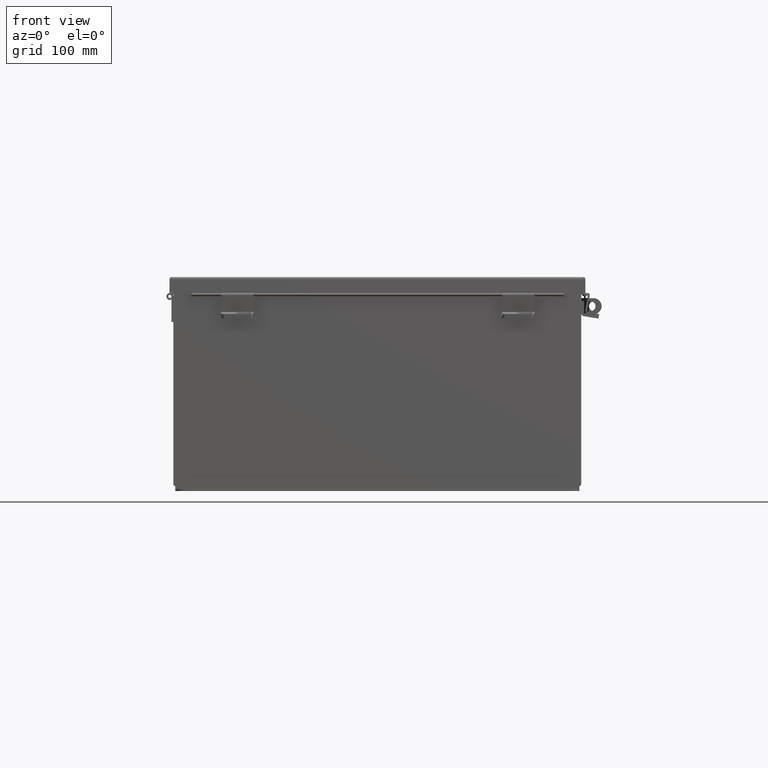
[diagram: clean part render]
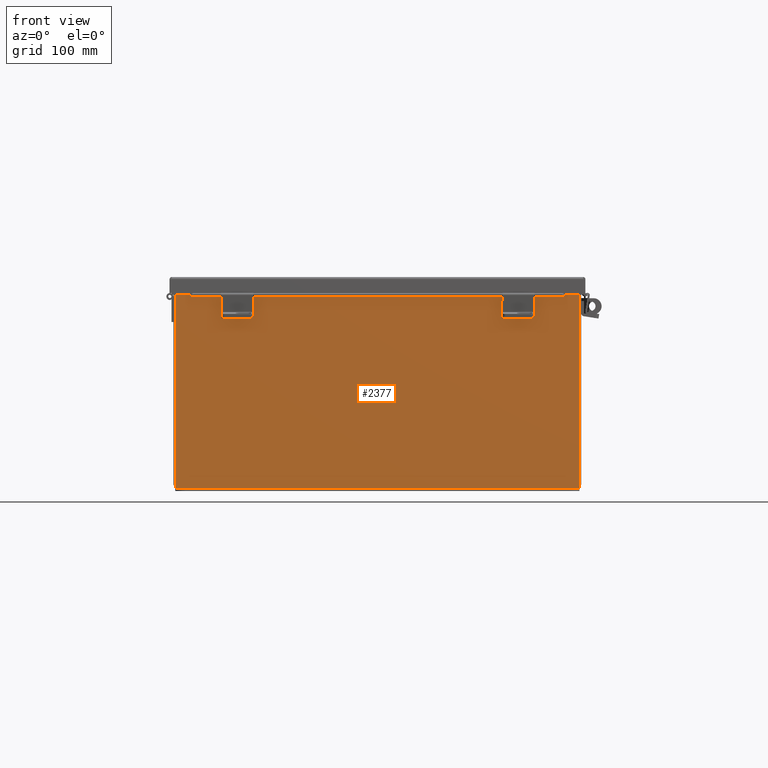
[diagram: same view with one face highlighted and labeled with its STEP entity id]
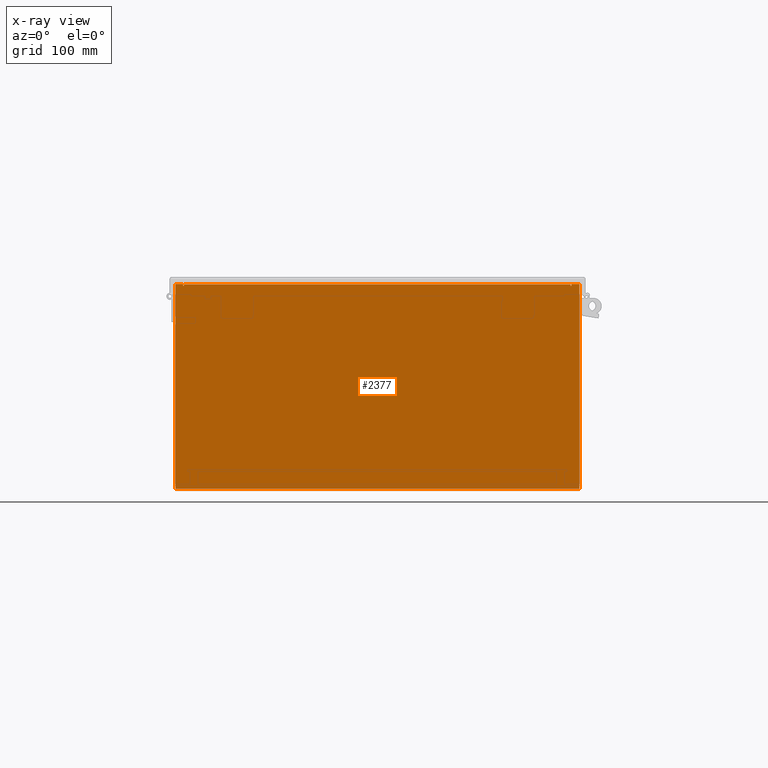
[diagram: x-ray of the same camera — body ghosted, the highlighted face saturated]
A machine part, front view. The second image highlights one B-rep face of the part: STEP entity #2377.
The next image is the same camera in x-ray: the body ghosted, the highlighted face saturated — about 0% of this face is hidden behind the body in this view.
In plain terms, the highlighted planar face has unit normal (-0, 1, -0).
Its self-contained STEP definition (entity closure, byte-faithful):
#1123 = ORIENTED_EDGE ( 'NONE', *, *, #18705, .F. ) ;
#1651 = VECTOR ( 'NONE', #7630, 39.37007874015748100 ) ;
#1721 = CARTESIAN_POINT ( 'NONE',  ( -7.582299999999991200, 0.0000000000000000000, 0.0000000000000000000 ) ) ;
#1756 = CARTESIAN_POINT ( 'NONE',  ( 7.582300000000008000, 0.0000000000000000000, 3.912299999999998800 ) ) ;
#1758 = EDGE_CURVE ( 'NONE', #12226, #7974, #14048, .T. ) ;
#1808 = EDGE_CURVE ( 'NONE', #20634, #17099, #8913, .T. ) ;
#2187 = LINE ( 'NONE', #5903, #1651 ) ;
#2377 = ADVANCED_FACE ( 'NONE', ( #16458 ), #14471, .F. ) ;
#2391 = CARTESIAN_POINT ( 'NONE',  ( 7.600975000000008000, 0.0000000000000000000, 3.874949999999998300 ) ) ;
#2631 = VERTEX_POINT ( 'NONE', #12726 ) ;
#2712 = ORIENTED_EDGE ( 'NONE', *, *, #16658, .T. ) ;
#2821 = CARTESIAN_POINT ( 'NONE',  ( -7.925299999999990200, -1.748382715945128500E-014, 3.925299999999999600 ) ) ;
#2836 = ORIENTED_EDGE ( 'NONE', *, *, #18656, .T. ) ;
#2870 = CIRCLE ( 'NONE', #10844, 0.01867500000000003900 ) ;
#2980 = ORIENTED_EDGE ( 'NONE', *, *, #14484, .F. ) ;
#4085 = DIRECTION ( 'NONE',  ( 0.0000000000000000000, 0.0000000000000000000, -1.000000000000000000 ) ) ;
#4125 = DIRECTION ( 'NONE',  ( 0.0000000000000000000, 0.0000000000000000000, -1.000000000000000000 ) ) ;
#4134 = LINE ( 'NONE', #15691, #8215 ) ;
#4221 = VECTOR ( 'NONE', #12978, 39.37007874015748100 ) ;
#4694 = CARTESIAN_POINT ( 'NONE',  ( -7.925299999999990200, -1.748382715945128500E-014, 3.925299999999999600 ) ) ;
#4701 = CARTESIAN_POINT ( 'NONE',  ( 7.619650000000007100, 0.0000000000000000000, 3.874949999999998300 ) ) ;
#4715 = CARTESIAN_POINT ( 'NONE',  ( 0.0000000000000000000, 0.0000000000000000000, 0.0000000000000000000 ) ) ;
#5088 = DIRECTION ( 'NONE',  ( 0.0000000000000000000, 0.0000000000000000000, -1.000000000000000000 ) ) ;
#5534 = VECTOR ( 'NONE', #11283, 39.37007874015748100 ) ;
#5903 = CARTESIAN_POINT ( 'NONE',  ( 7.925300000000009800, 0.0000000000000000000, 3.925299999999999600 ) ) ;
#6359 = EDGE_CURVE ( 'NONE', #7974, #21381, #7149, .T. ) ;
#6467 = DIRECTION ( 'NONE',  ( 1.000000000000000000, 4.910036603141682400E-031, 0.0000000000000000000 ) ) ;
#6549 = DIRECTION ( 'NONE',  ( 1.000000000000000000, 4.910036603141682400E-031, -0.0000000000000000000 ) ) ;
#7092 = DIRECTION ( 'NONE',  ( 0.0000000000000000000, 0.0000000000000000000, 1.000000000000000000 ) ) ;
#7149 = CIRCLE ( 'NONE', #18149, 0.01867500000000003900 ) ;
#7599 = AXIS2_PLACEMENT_3D ( 'NONE', #4715, #10393, #4085 ) ;
#7630 = DIRECTION ( 'NONE',  ( -1.391918066728283300E-016, 0.0000000000000000000, -1.000000000000000000 ) ) ;
#7974 = VERTEX_POINT ( 'NONE', #20567 ) ;
#8215 = VECTOR ( 'NONE', #7092, 39.37007874015748100 ) ;
#8405 = VERTEX_POINT ( 'NONE', #18509 ) ;
#8913 = LINE ( 'NONE', #2821, #18655 ) ;
#9039 = VECTOR ( 'NONE', #12566, 39.37007874015748100 ) ;
#10393 = DIRECTION ( 'NONE',  ( -4.910036603141682400E-031, -1.000000000000000000, -0.0000000000000000000 ) ) ;
#10844 = AXIS2_PLACEMENT_3D ( 'NONE', #2391, #14479, #4125 ) ;
#10912 = CARTESIAN_POINT ( 'NONE',  ( -7.925299999999990200, -1.748382715945128500E-014, 3.925299999999999600 ) ) ;
#11283 = DIRECTION ( 'NONE',  ( -4.340572780399910900E-014, 0.0000000000000000000, -1.000000000000000000 ) ) ;
#11627 = EDGE_CURVE ( 'NONE', #12226, #13730, #14252, .T. ) ;
#11666 = ORIENTED_EDGE ( 'NONE', *, *, #14078, .F. ) ;
#12226 = VERTEX_POINT ( 'NONE', #16055 ) ;
#12566 = DIRECTION ( 'NONE',  ( 1.000000000000000000, 4.910036603141682400E-031, 0.0000000000000000000 ) ) ;
#12726 = CARTESIAN_POINT ( 'NONE',  ( 7.925300000000009800, 0.0000000000000000000, 3.925299999999999600 ) ) ;
#12978 = DIRECTION ( 'NONE',  ( 0.0000000000000000000, 0.0000000000000000000, 1.000000000000000000 ) ) ;
#12981 = DIRECTION ( 'NONE',  ( 1.000000000000000000, 8.208677865577687000E-017, -0.0000000000000000000 ) ) ;
#13055 = EDGE_CURVE ( 'NONE', #16378, #18317, #19894, .T. ) ;
#13432 = LINE ( 'NONE', #13458, #4221 ) ;
#13458 = CARTESIAN_POINT ( 'NONE',  ( -7.619649999999991200, 0.0000000000000000000, 0.0000000000000000000 ) ) ;
#13651 = CARTESIAN_POINT ( 'NONE',  ( 7.619650000000010700, 0.0000000000000000000, 3.925299999999999600 ) ) ;
#13730 = VERTEX_POINT ( 'NONE', #1756 ) ;
#14048 = LINE ( 'NONE', #1721, #14577 ) ;
#14078 = EDGE_CURVE ( 'NONE', #21381, #17099, #13432, .T. ) ;
#14143 = EDGE_LOOP ( 'NONE', ( #11666, #16664, #21023, #17689, #14758, #2980, #19377, #2712, #2836, #1123, #14351, #17469 ) ) ;
#14252 = LINE ( 'NONE', #20324, #17775 ) ;
#14333 = VECTOR ( 'NONE', #12981, 39.37007874015748100 ) ;
#14351 = ORIENTED_EDGE ( 'NONE', *, *, #15349, .T. ) ;
#14471 = PLANE ( 'NONE',  #7599 ) ;
#14479 = DIRECTION ( 'NONE',  ( 4.910036603141682400E-031, 1.000000000000000000, -0.0000000000000000000 ) ) ;
#14484 = EDGE_CURVE ( 'NONE', #18317, #18704, #2870, .T. ) ;
#14577 = VECTOR ( 'NONE', #5088, 39.37007874015748100 ) ;
#14758 = ORIENTED_EDGE ( 'NONE', *, *, #22192, .F. ) ;
#15001 = CARTESIAN_POINT ( 'NONE',  ( -7.600974999999990300, 0.0000000000000000000, 3.874949999999998300 ) ) ;
#15054 = DIRECTION ( 'NONE',  ( 0.0000000000000000000, 0.0000000000000000000, 1.000000000000000000 ) ) ;
#15349 = EDGE_CURVE ( 'NONE', #19053, #20634, #18571, .T. ) ;
#15691 = CARTESIAN_POINT ( 'NONE',  ( 7.582300000000008000, 0.0000000000000000000, 0.0000000000000000000 ) ) ;
#16055 = CARTESIAN_POINT ( 'NONE',  ( -7.582299999999991200, 2.185478394931410600E-015, 3.912299999999998800 ) ) ;
#16327 = CARTESIAN_POINT ( 'NONE',  ( 7.582300000000008000, 0.0000000000000000000, 3.874949999999998300 ) ) ;
#16378 = VERTEX_POINT ( 'NONE', #13651 ) ;
#16458 = FACE_OUTER_BOUND ( 'NONE', #14143, .T. ) ;
#16658 = EDGE_CURVE ( 'NONE', #16378, #2631, #22313, .T. ) ;
#16664 = ORIENTED_EDGE ( 'NONE', *, *, #6359, .F. ) ;
#17099 = VERTEX_POINT ( 'NONE', #20862 ) ;
#17469 = ORIENTED_EDGE ( 'NONE', *, *, #1808, .T. ) ;
#17689 = ORIENTED_EDGE ( 'NONE', *, *, #11627, .T. ) ;
#17775 = VECTOR ( 'NONE', #6549, 39.37007874015748100 ) ;
#18019 = VECTOR ( 'NONE', #15054, 39.37007874015748100 ) ;
#18149 = AXIS2_PLACEMENT_3D ( 'NONE', #15001, #22149, #18815 ) ;
#18317 = VERTEX_POINT ( 'NONE', #4701 ) ;
#18509 = CARTESIAN_POINT ( 'NONE',  ( 7.925300000000008900, 1.748382715945128500E-014, -4.099299999999999500 ) ) ;
#18571 = LINE ( 'NONE', #4694, #18019 ) ;
#18655 = VECTOR ( 'NONE', #6467, 39.37007874015748100 ) ;
#18656 = EDGE_CURVE ( 'NONE', #2631, #8405, #2187, .T. ) ;
#18704 = VERTEX_POINT ( 'NONE', #16327 ) ;
#18705 = EDGE_CURVE ( 'NONE', #19053, #8405, #18970, .T. ) ;
#18815 = DIRECTION ( 'NONE',  ( 0.0000000000000000000, 0.0000000000000000000, -1.000000000000000000 ) ) ;
#18970 = LINE ( 'NONE', #21620, #14333 ) ;
#19053 = VERTEX_POINT ( 'NONE', #19345 ) ;
#19345 = CARTESIAN_POINT ( 'NONE',  ( -7.925299999999991100, -2.185478394931410600E-015, -4.099299999999999500 ) ) ;
#19377 = ORIENTED_EDGE ( 'NONE', *, *, #13055, .F. ) ;
#19894 = LINE ( 'NONE', #19911, #5534 ) ;
#19911 = CARTESIAN_POINT ( 'NONE',  ( 7.619649999999840200, 0.0000000000000000000, -3.305536072333758300E-013 ) ) ;
#20324 = CARTESIAN_POINT ( 'NONE',  ( -7.582299999999991200, 2.185478394931410600E-015, 3.912299999999998800 ) ) ;
#20567 = CARTESIAN_POINT ( 'NONE',  ( -7.582299999999991200, 0.0000000000000000000, 3.874949999999998300 ) ) ;
#20634 = VERTEX_POINT ( 'NONE', #22008 ) ;
#20862 = CARTESIAN_POINT ( 'NONE',  ( -7.619649999999991200, 0.0000000000000000000, 3.925299999999999600 ) ) ;
#21023 = ORIENTED_EDGE ( 'NONE', *, *, #1758, .F. ) ;
#21381 = VERTEX_POINT ( 'NONE', #22202 ) ;
#21620 = CARTESIAN_POINT ( 'NONE',  ( -7.925299999999991100, -2.185478394931410600E-015, -4.099299999999999500 ) ) ;
#22008 = CARTESIAN_POINT ( 'NONE',  ( -7.925299999999990200, -1.748382715945128500E-014, 3.925299999999999600 ) ) ;
#22149 = DIRECTION ( 'NONE',  ( 4.910036603141682400E-031, 1.000000000000000000, -0.0000000000000000000 ) ) ;
#22192 = EDGE_CURVE ( 'NONE', #18704, #13730, #4134, .T. ) ;
#22202 = CARTESIAN_POINT ( 'NONE',  ( -7.619649999999990300, 0.0000000000000000000, 3.874949999999998300 ) ) ;
#22313 = LINE ( 'NONE', #10912, #9039 ) ;